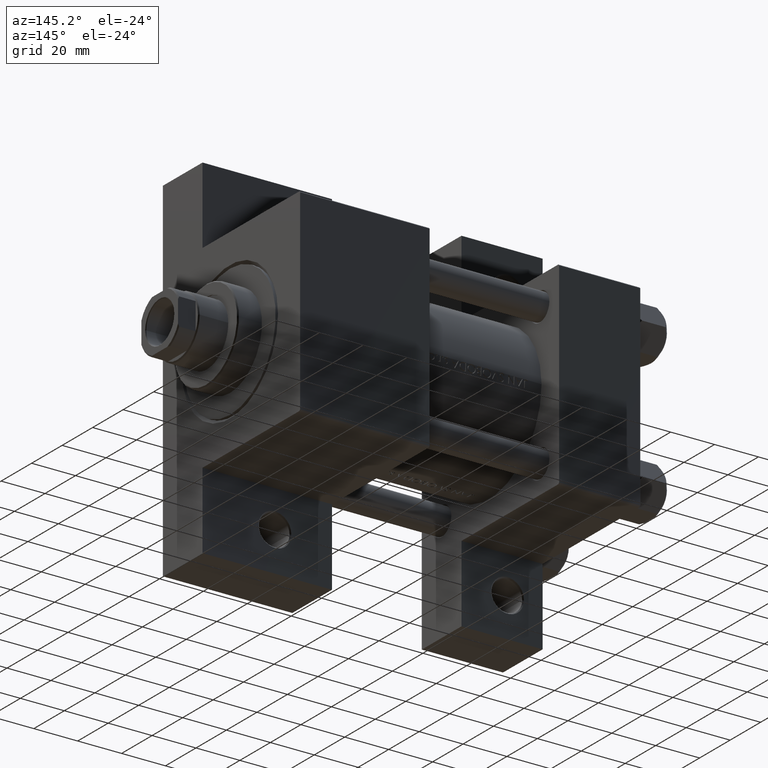
[diagram: clean part render]
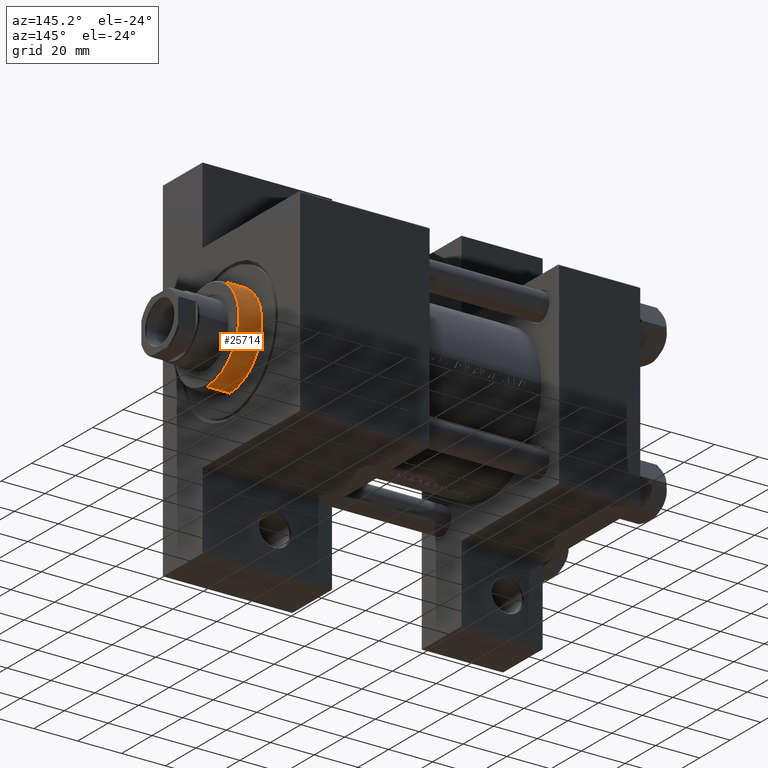
[diagram: same view with one face highlighted and labeled with its STEP entity id]
A machine part, auxiliary view. The second image highlights one B-rep face of the part: STEP entity #25714.
In plain terms, the highlighted cylindrical surface (partial cylindrical patch) has radius 21 mm, axis along (-1, -0, 0).
Its self-contained STEP definition (entity closure, byte-faithful):
#104 = CARTESIAN_POINT ( 'NONE',  ( 0.000000000000000000, 0.000000000000000000, 39.69999999999999574 ) ) ;
#2366 = VERTEX_POINT ( 'NONE', #25509 ) ;
#3609 = DIRECTION ( 'NONE',  ( 1.000000000000000000, 0.000000000000000000, 0.000000000000000000 ) ) ;
#4297 = CARTESIAN_POINT ( 'NONE',  ( 0.000000000000000000, 0.000000000000000000, 39.19999999999999574 ) ) ;
#4565 = DIRECTION ( 'NONE',  ( -0.000000000000000000, -0.000000000000000000, -1.000000000000000000 ) ) ;
#5436 = CIRCLE ( 'NONE', #30038, 21.00000000000000000 ) ;
#7604 = LINE ( 'NONE', #36964, #23270 ) ;
#11002 = VERTEX_POINT ( 'NONE', #43298 ) ;
#11075 = CARTESIAN_POINT ( 'NONE',  ( 0.000000000000000000, 0.000000000000000000, 28.69999999999999929 ) ) ;
#11303 = VERTEX_POINT ( 'NONE', #29893 ) ;
#11531 = DIRECTION ( 'NONE',  ( 0.000000000000000000, 0.000000000000000000, -1.000000000000000000 ) ) ;
#13419 = EDGE_LOOP ( 'NONE', ( #14336, #28729, #33369, #32164 ) ) ;
#14336 = ORIENTED_EDGE ( 'NONE', *, *, #40583, .T. ) ;
#19374 = CIRCLE ( 'NONE', #44788, 21.00000000000000000 ) ;
#21316 = DIRECTION ( 'NONE',  ( -0.000000000000000000, -0.000000000000000000, -1.000000000000000000 ) ) ;
#21748 = DIRECTION ( 'NONE',  ( -1.000000000000000000, 0.000000000000000000, 0.000000000000000000 ) ) ;
#23270 = VECTOR ( 'NONE', #21316, 1000.000000000000000 ) ;
#25509 = CARTESIAN_POINT ( 'NONE',  ( -21.00000000000000000, 0.000000000000000000, 28.69999999999999929 ) ) ;
#25714 = ADVANCED_FACE ( 'NONE', ( #47284 ), #35951, .T. ) ;
#26933 = CARTESIAN_POINT ( 'NONE',  ( 21.00000000000000000, 2.571758278209441661E-15, 39.19999999999999574 ) ) ;
#28729 = ORIENTED_EDGE ( 'NONE', *, *, #38085, .T. ) ;
#28732 = VERTEX_POINT ( 'NONE', #26933 ) ;
#29893 = CARTESIAN_POINT ( 'NONE',  ( 21.00000000000000000, 2.571758278209441661E-15, 28.69999999999999929 ) ) ;
#29983 = AXIS2_PLACEMENT_3D ( 'NONE', #104, #32573, #21748 ) ;
#30038 = AXIS2_PLACEMENT_3D ( 'NONE', #11075, #36816, #3609 ) ;
#32164 = ORIENTED_EDGE ( 'NONE', *, *, #35007, .F. ) ;
#32573 = DIRECTION ( 'NONE',  ( -0.000000000000000000, -0.000000000000000000, -1.000000000000000000 ) ) ;
#33128 = VECTOR ( 'NONE', #4565, 1000.000000000000000 ) ;
#33369 = ORIENTED_EDGE ( 'NONE', *, *, #33891, .T. ) ;
#33891 = EDGE_CURVE ( 'NONE', #11303, #2366, #5436, .T. ) ;
#35007 = EDGE_CURVE ( 'NONE', #11002, #2366, #36583, .T. ) ;
#35951 = CYLINDRICAL_SURFACE ( 'NONE', #29983, 21.00000000000000000 ) ;
#36583 = LINE ( 'NONE', #40916, #33128 ) ;
#36816 = DIRECTION ( 'NONE',  ( 0.000000000000000000, 0.000000000000000000, 1.000000000000000000 ) ) ;
#36964 = CARTESIAN_POINT ( 'NONE',  ( 21.00000000000000000, 2.571758278209441661E-15, 39.69999999999999574 ) ) ;
#38085 = EDGE_CURVE ( 'NONE', #28732, #11303, #7604, .T. ) ;
#40583 = EDGE_CURVE ( 'NONE', #11002, #28732, #19374, .T. ) ;
#40916 = CARTESIAN_POINT ( 'NONE',  ( -21.00000000000000000, 0.000000000000000000, 39.69999999999999574 ) ) ;
#41122 = DIRECTION ( 'NONE',  ( 1.000000000000000000, 0.000000000000000000, 0.000000000000000000 ) ) ;
#43298 = CARTESIAN_POINT ( 'NONE',  ( -21.00000000000000000, 0.000000000000000000, 39.19999999999999574 ) ) ;
#44788 = AXIS2_PLACEMENT_3D ( 'NONE', #4297, #11531, #41122 ) ;
#47284 = FACE_OUTER_BOUND ( 'NONE', #13419, .T. ) ;